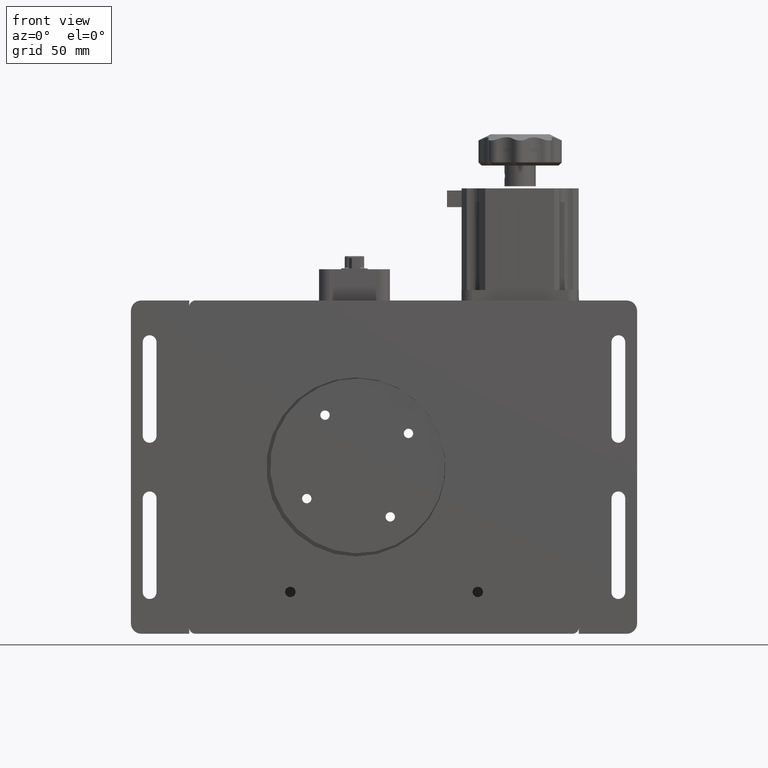
[diagram: clean part render]
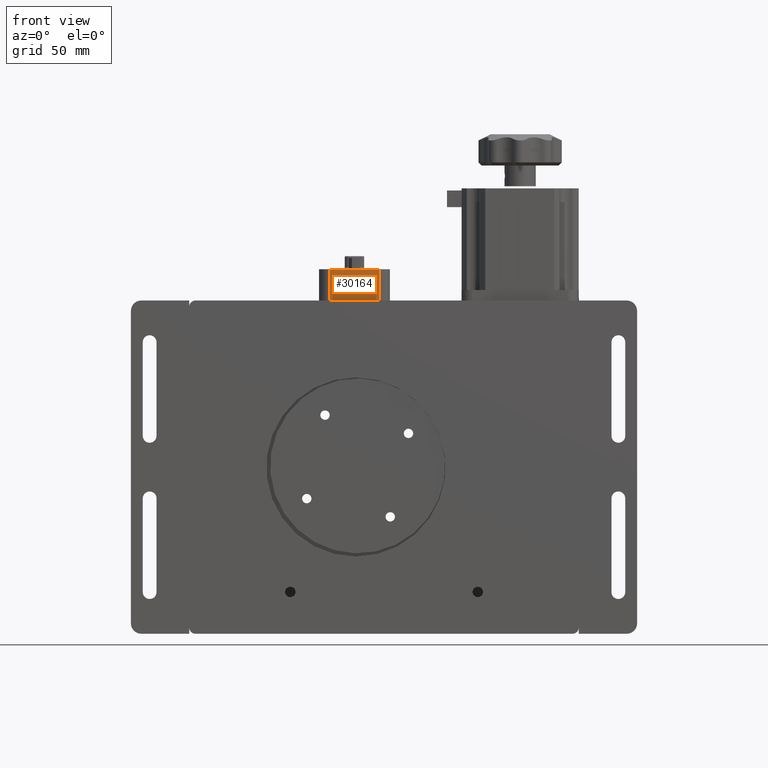
[diagram: same view with one face highlighted and labeled with its STEP entity id]
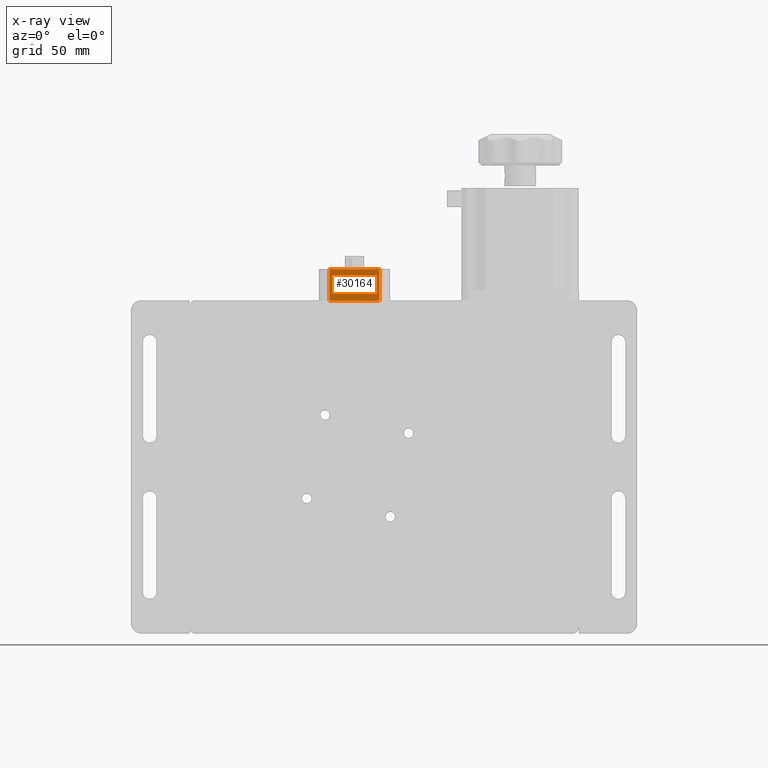
[diagram: x-ray of the same camera — body ghosted, the highlighted face saturated]
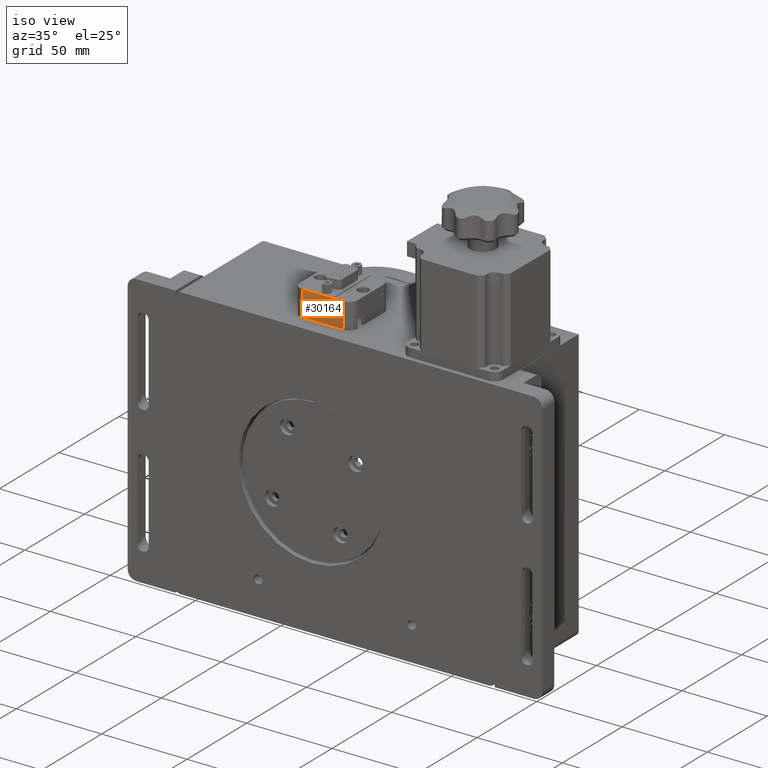
[diagram: same view with one face highlighted and labeled with its STEP entity id]
A machine part, front view. The second image highlights one B-rep face of the part: STEP entity #30164.
The next image is the same camera in x-ray: the body ghosted, the highlighted face saturated — about 0% of this face is hidden behind the body in this view.
A second angle (iso view) of the same face is appended — the face is thin or edge-on in the first view.
In plain terms, the highlighted planar face has unit normal (-0, 1, -0).
Its self-contained STEP definition (entity closure, byte-faithful):
#6142 = VERTEX_POINT ( 'NONE', #15808 ) ;
#7267 = DIRECTION ( 'NONE',  ( 1.163031447553720800E-017, 1.979074067922860900E-017, 1.000000000000000000 ) ) ;
#7499 = CARTESIAN_POINT ( 'NONE',  ( 160.7999999999999500, 2.499999999999977800, 80.00000000000000000 ) ) ;
#10280 = EDGE_LOOP ( 'NONE', ( #40999, #44057, #96737, #104807 ) ) ;
#10456 = EDGE_CURVE ( 'NONE', #11001, #29990, #28652, .T. ) ;
#11001 = VERTEX_POINT ( 'NONE', #7499 ) ;
#15808 = CARTESIAN_POINT ( 'NONE',  ( 184.7999999999999500, 2.499999999999960500, 80.00000000000000000 ) ) ;
#18548 = CARTESIAN_POINT ( 'NONE',  ( 160.7999999999999500, 2.499999999999977800, 95.00000000000000000 ) ) ;
#27743 = CARTESIAN_POINT ( 'NONE',  ( 184.7999999999999500, 2.499999999999960500, 80.00000000000000000 ) ) ;
#27881 = FACE_OUTER_BOUND ( 'NONE', #10280, .T. ) ;
#28652 = LINE ( 'NONE', #57310, #70480 ) ;
#29990 = VERTEX_POINT ( 'NONE', #18548 ) ;
#30164 = ADVANCED_FACE ( 'NONE', ( #27881 ), #47365, .F. ) ;
#30878 = CARTESIAN_POINT ( 'NONE',  ( 184.7999999999999500, 2.499999999999960500, 80.00000000000000000 ) ) ;
#31945 = DIRECTION ( 'NONE',  ( -1.000000000000000000, 5.551115123125781700E-016, 1.163031447553721700E-017 ) ) ;
#32194 = AXIS2_PLACEMENT_3D ( 'NONE', #30878, #89356, #39320 ) ;
#35327 = EDGE_CURVE ( 'NONE', #75595, #29990, #100569, .T. ) ;
#39320 = DIRECTION ( 'NONE',  ( -1.163031447553720800E-017, -1.979074067922860900E-017, -1.000000000000000000 ) ) ;
#40999 = ORIENTED_EDGE ( 'NONE', *, *, #35327, .T. ) ;
#44057 = ORIENTED_EDGE ( 'NONE', *, *, #10456, .F. ) ;
#46566 = EDGE_CURVE ( 'NONE', #6142, #11001, #94779, .T. ) ;
#47365 = PLANE ( 'NONE',  #32194 ) ;
#57310 = CARTESIAN_POINT ( 'NONE',  ( 160.7999999999999500, 2.499999999999977800, 80.00000000000000000 ) ) ;
#57533 = VECTOR ( 'NONE', #101877, 1000.000000000000000 ) ;
#59785 = CARTESIAN_POINT ( 'NONE',  ( 184.7999999999999500, 2.499999999999960500, 80.00000000000000000 ) ) ;
#60147 = DIRECTION ( 'NONE',  ( -1.000000000000000000, 5.551115123125781700E-016, 1.163031447553721700E-017 ) ) ;
#65225 = CARTESIAN_POINT ( 'NONE',  ( 184.7999999999999500, 2.499999999999960500, 95.00000000000000000 ) ) ;
#68514 = EDGE_CURVE ( 'NONE', #6142, #75595, #101911, .T. ) ;
#70480 = VECTOR ( 'NONE', #7267, 1000.000000000000000 ) ;
#72601 = VECTOR ( 'NONE', #60147, 1000.000000000000000 ) ;
#75595 = VERTEX_POINT ( 'NONE', #106311 ) ;
#89356 = DIRECTION ( 'NONE',  ( -6.661338147750937300E-016, 1.000000000000000000, -1.979074067922860000E-017 ) ) ;
#94779 = LINE ( 'NONE', #59785, #72601 ) ;
#96737 = ORIENTED_EDGE ( 'NONE', *, *, #46566, .F. ) ;
#97959 = VECTOR ( 'NONE', #31945, 1000.000000000000000 ) ;
#100569 = LINE ( 'NONE', #65225, #97959 ) ;
#101877 = DIRECTION ( 'NONE',  ( 1.163031447553720800E-017, 1.979074067922860900E-017, 1.000000000000000000 ) ) ;
#101911 = LINE ( 'NONE', #27743, #57533 ) ;
#104807 = ORIENTED_EDGE ( 'NONE', *, *, #68514, .T. ) ;
#106311 = CARTESIAN_POINT ( 'NONE',  ( 184.7999999999999500, 2.499999999999960500, 95.00000000000000000 ) ) ;